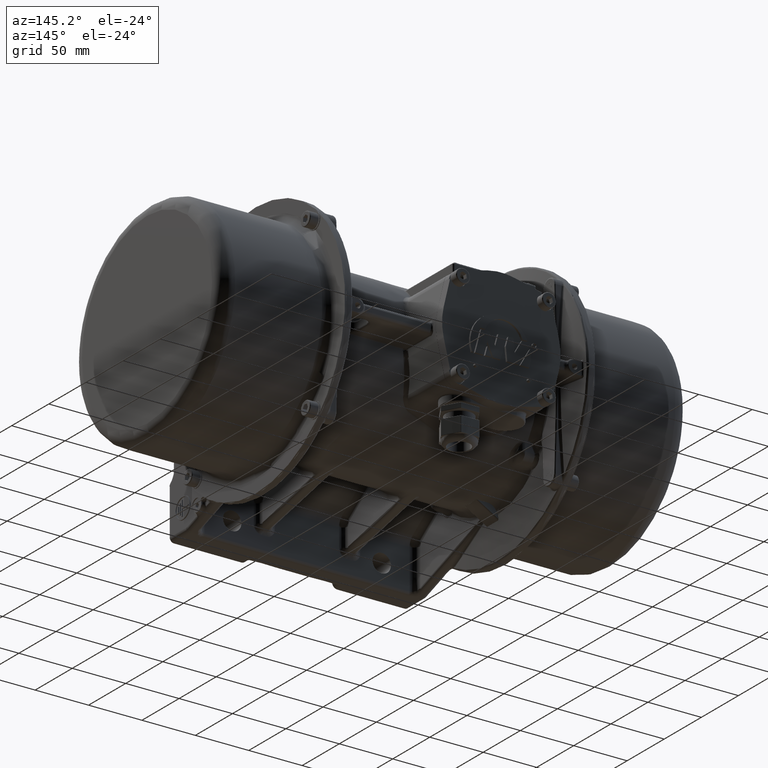
[diagram: clean part render]
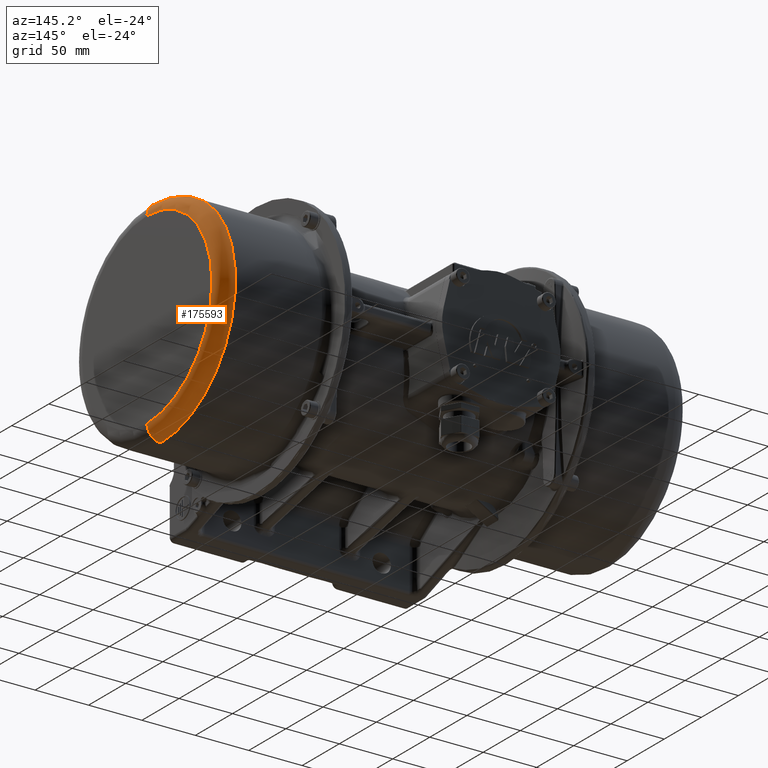
[diagram: same view with one face highlighted and labeled with its STEP entity id]
A machine part, auxiliary view. The second image highlights one B-rep face of the part: STEP entity #175593.
In plain terms, the highlighted toroidal blend (fillet) surface has major radius 87.5 mm and minor (blend) radius 13 mm.
Its self-contained STEP definition (entity closure, byte-faithful):
#6135 = AXIS2_PLACEMENT_3D ( 'NONE', #28871, #28869, #28889 ) ;
#7210 = CARTESIAN_POINT ( 'NONE',  ( 213.6420498956300100, 36.10843668353455600, -87.50000000000005700 ) ) ;
#7211 = CARTESIAN_POINT ( 'NONE',  ( 213.6420498956300100, 36.10843668353452800, 87.49999999999994300 ) ) ;
#7212 = CARTESIAN_POINT ( 'NONE',  ( 200.6420498956300100, 36.10843668353452800, 100.4999999999999600 ) ) ;
#7213 = CARTESIAN_POINT ( 'NONE',  ( 200.6420498956300100, 36.10843668353455600, -100.5000000000000600 ) ) ;
#21658 = CIRCLE ( 'NONE', #141775, 12.99999999999999800 ) ;
#21660 = CIRCLE ( 'NONE', #141778, 12.99999999999999800 ) ;
#21933 = CIRCLE ( 'NONE', #141825, 100.5000000000000000 ) ;
#21936 = CIRCLE ( 'NONE', #141826, 87.50000000000000000 ) ;
#28869 = DIRECTION ( 'NONE',  ( -1.000000000000000000, -2.944983097282874300E-031, 2.832402298722365000E-018 ) ) ;
#28871 = CARTESIAN_POINT ( 'NONE',  ( 200.6420498956300100, 36.10843668353454900, -5.576606743814379800E-014 ) ) ;
#28889 = DIRECTION ( 'NONE',  ( -2.832402298722364600E-018, 6.904372043688785100E-017, -1.000000000000000000 ) ) ;
#34085 = FACE_OUTER_BOUND ( 'NONE', #187977, .T. ) ;
#34136 = TOROIDAL_SURFACE ( 'NONE', #6135, 87.50000000000000000, 13.00000000000000000 ) ;
#64283 = CARTESIAN_POINT ( 'NONE',  ( 200.6420498956300100, 36.10843668353455600, -87.50000000000005700 ) ) ;
#64308 = CARTESIAN_POINT ( 'NONE',  ( 200.6420498956300100, 36.10843668353452800, 87.49999999999994300 ) ) ;
#64314 = DIRECTION ( 'NONE',  ( 2.939306852595354700E-031, -1.000000000000000000, -2.004039006069234000E-016 ) ) ;
#64318 = DIRECTION ( 'NONE',  ( 0.0000000000000000000, 0.0000000000000000000, -1.000000000000000000 ) ) ;
#64342 = DIRECTION ( 'NONE',  ( -2.942775545004382700E-031, 1.000000000000000000, 7.793922069218809200E-017 ) ) ;
#64346 = DIRECTION ( 'NONE',  ( 0.0000000000000000000, 0.0000000000000000000, 1.000000000000000000 ) ) ;
#66848 = CARTESIAN_POINT ( 'NONE',  ( 200.6420498956300100, 36.10843668353454900, -5.576606743814379800E-014 ) ) ;
#66865 = CARTESIAN_POINT ( 'NONE',  ( 213.6420498956300100, 36.10843668353454900, -5.580288866802719600E-014 ) ) ;
#66892 = DIRECTION ( 'NONE',  ( -1.000000000000000000, -2.944983097282874300E-031, 2.832402298722365000E-018 ) ) ;
#66897 = DIRECTION ( 'NONE',  ( 0.0000000000000000000, 6.904372043688783800E-017, -1.000000000000000000 ) ) ;
#66909 = DIRECTION ( 'NONE',  ( -1.000000000000000000, -2.944983097282874300E-031, 2.832402298722365000E-018 ) ) ;
#66913 = DIRECTION ( 'NONE',  ( 0.0000000000000000000, 7.930164461608261200E-017, -1.000000000000000000 ) ) ;
#141775 = AXIS2_PLACEMENT_3D ( 'NONE', #64308, #64314, #64318 ) ;
#141778 = AXIS2_PLACEMENT_3D ( 'NONE', #64283, #64342, #64346 ) ;
#141825 = AXIS2_PLACEMENT_3D ( 'NONE', #66848, #66892, #66897 ) ;
#141826 = AXIS2_PLACEMENT_3D ( 'NONE', #66865, #66909, #66913 ) ;
#172702 = VERTEX_POINT ( 'NONE', #7210 ) ;
#172703 = VERTEX_POINT ( 'NONE', #7211 ) ;
#172704 = VERTEX_POINT ( 'NONE', #7212 ) ;
#172705 = VERTEX_POINT ( 'NONE', #7213 ) ;
#175593 = ADVANCED_FACE ( 'NONE', ( #34085 ), #34136, .T. ) ;
#180481 = EDGE_CURVE ( 'NONE', #172703, #172704, #21658, .T. ) ;
#180486 = EDGE_CURVE ( 'NONE', #172702, #172705, #21660, .T. ) ;
#180843 = EDGE_CURVE ( 'NONE', #172704, #172705, #21933, .T. ) ;
#180845 = EDGE_CURVE ( 'NONE', #172703, #172702, #21936, .T. ) ;
#187977 = EDGE_LOOP ( 'NONE', ( #192929, #192930, #192931, #192932 ) ) ;
#192929 = ORIENTED_EDGE ( 'NONE', *, *, #180481, .F. ) ;
#192930 = ORIENTED_EDGE ( 'NONE', *, *, #180845, .T. ) ;
#192931 = ORIENTED_EDGE ( 'NONE', *, *, #180486, .T. ) ;
#192932 = ORIENTED_EDGE ( 'NONE', *, *, #180843, .F. ) ;